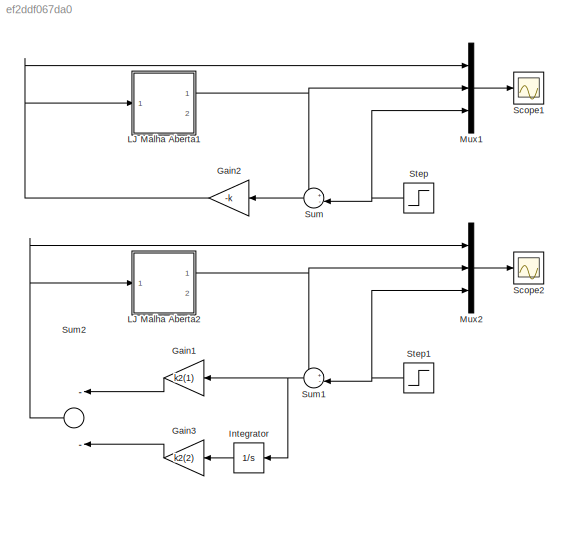
MODEL slx_ef2ddf067da0
KIND model
BLOCK [Gain] Gain1
  Gain = k2(1)
  OutDataTypeStr = Inherit: Inherit via internal rule
  ParamDataTypeStr = Inherit: Inherit via internal rule
  SaturateOnIntegerOverflow = off
BLOCK [Gain] Gain2
  Gain = -k
  OutDataTypeStr = Inherit: Inherit via internal rule
  ParamDataTypeStr = Inherit: Inherit via internal rule
  SaturateOnIntegerOverflow = off
BLOCK [Gain] Gain3
  Gain = k2(2)
  OutDataTypeStr = Inherit: Inherit via internal rule
  ParamDataTypeStr = Inherit: Inherit via internal rule
  SaturateOnIntegerOverflow = off
BLOCK [Integrator] Integrator
  Ports = [1, 1]
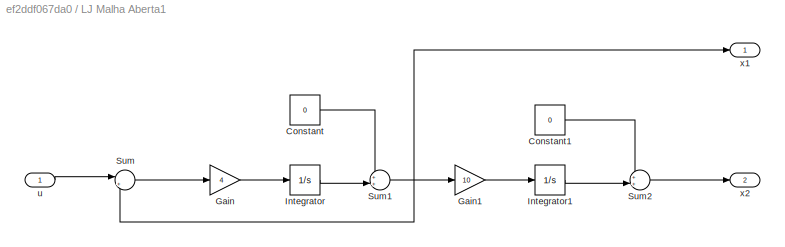
BLOCK [SubSystem] LJ Malha Aberta1
  Ports = [1, 2]
  RequestExecContextInheritance = off
BLOCK [Constant] LJ Malha Aberta1/Constant
  Value = 0
BLOCK [Constant] LJ Malha Aberta1/Constant1
  Value = 0
BLOCK [Gain] LJ Malha Aberta1/Gain
  Gain = 4
  OutDataTypeStr = Inherit: Inherit via internal rule
  ParamDataTypeStr = Inherit: Inherit via internal rule
  SaturateOnIntegerOverflow = off
BLOCK [Gain] LJ Malha Aberta1/Gain1
  Gain = 10
  OutDataTypeStr = Inherit: Inherit via internal rule
  ParamDataTypeStr = Inherit: Inherit via internal rule
  SaturateOnIntegerOverflow = off
BLOCK [Integrator] LJ Malha Aberta1/Integrator
  Ports = [1, 1]
BLOCK [Integrator] LJ Malha Aberta1/Integrator1
  Ports = [1, 1]
BLOCK [Sum] LJ Malha Aberta1/Sum
  IconShape = round
  InputSameDT = off
  Inputs = |+-
  OutDataTypeStr = Inherit: Inherit via internal rule
  Ports = [2, 1]
  SaturateOnIntegerOverflow = off
BLOCK [Sum] LJ Malha Aberta1/Sum1
  IconShape = round
  InputSameDT = off
  Inputs = ++|
  OutDataTypeStr = Inherit: Inherit via internal rule
  Ports = [2, 1]
  SaturateOnIntegerOverflow = off
BLOCK [Sum] LJ Malha Aberta1/Sum2
  IconShape = round
  InputSameDT = off
  Inputs = ++|
  OutDataTypeStr = Inherit: Inherit via internal rule
  Ports = [2, 1]
  SaturateOnIntegerOverflow = off
BLOCK [Inport] LJ Malha Aberta1/u
  IconDisplay = Port number
BLOCK [Outport] LJ Malha Aberta1/x1
  IconDisplay = Port number
BLOCK [Outport] LJ Malha Aberta1/x2 
  IconDisplay = Port number
  Port = 2
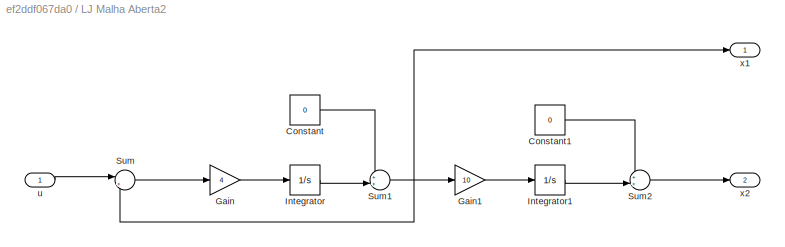
BLOCK [SubSystem] LJ Malha Aberta2
  Ports = [1, 2]
  RequestExecContextInheritance = off
BLOCK [Constant] LJ Malha Aberta2/Constant
  Value = 0
BLOCK [Constant] LJ Malha Aberta2/Constant1
  Value = 0
BLOCK [Gain] LJ Malha Aberta2/Gain
  Gain = 4
  OutDataTypeStr = Inherit: Inherit via internal rule
  ParamDataTypeStr = Inherit: Inherit via internal rule
  SaturateOnIntegerOverflow = off
BLOCK [Gain] LJ Malha Aberta2/Gain1
  Gain = 10
  OutDataTypeStr = Inherit: Inherit via internal rule
  ParamDataTypeStr = Inherit: Inherit via internal rule
  SaturateOnIntegerOverflow = off
BLOCK [Integrator] LJ Malha Aberta2/Integrator
  Ports = [1, 1]
BLOCK [Integrator] LJ Malha Aberta2/Integrator1
  Ports = [1, 1]
BLOCK [Sum] LJ Malha Aberta2/Sum
  IconShape = round
  InputSameDT = off
  Inputs = |+-
  OutDataTypeStr = Inherit: Inherit via internal rule
  Ports = [2, 1]
  SaturateOnIntegerOverflow = off
BLOCK [Sum] LJ Malha Aberta2/Sum1
  IconShape = round
  InputSameDT = off
  Inputs = ++|
  OutDataTypeStr = Inherit: Inherit via internal rule
  Ports = [2, 1]
  SaturateOnIntegerOverflow = off
BLOCK [Sum] LJ Malha Aberta2/Sum2
  IconShape = round
  InputSameDT = off
  Inputs = ++|
  OutDataTypeStr = Inherit: Inherit via internal rule
  Ports = [2, 1]
  SaturateOnIntegerOverflow = off
BLOCK [Inport] LJ Malha Aberta2/u
  IconDisplay = Port number
BLOCK [Outport] LJ Malha Aberta2/x1
  IconDisplay = Port number
BLOCK [Outport] LJ Malha Aberta2/x2 
  IconDisplay = Port number
  Port = 2
BLOCK [Mux] Mux1
  DisplayOption = bar
  Inputs = 3
  Ports = [3, 1]
BLOCK [Mux] Mux2
  DisplayOption = bar
  Inputs = 3
  Ports = [3, 1]
BLOCK [Scope] Scope1
  DataFormat = StructureWithTime
  Floating = off
  NumInputPorts = 1
  Ports = [1]
  SampleTime = 0
  SaveName = ControleV
  SaveToWorkspace = on
  ShowLegends = off
  ZoomMode = xonly
BLOCK [Scope] Scope2
  DataFormat = StructureWithTime
  Floating = off
  NumInputPorts = 1
  Ports = [1]
  SampleTime = 0
  ShowLegends = off
  ZoomMode = xonly
BLOCK [Step] Step
  After = 10
  SampleTime = 0
  Time = 0
BLOCK [Step] Step1
  After = 10
  SampleTime = 0
  Time = 0.5
BLOCK [Sum] Sum
  IconShape = round
  InputSameDT = off
  Inputs = +-|
  OutDataTypeStr = Inherit: Inherit via internal rule
  Ports = [2, 1]
  SaturateOnIntegerOverflow = off
BLOCK [Sum] Sum1
  IconShape = round
  InputSameDT = off
  Inputs = +-|
  OutDataTypeStr = Inherit: Inherit via internal rule
  Ports = [2, 1]
  SaturateOnIntegerOverflow = off
BLOCK [Sum] Sum2
  InputSameDT = off
  Inputs = --
  OutDataTypeStr = Inherit: Inherit via internal rule
  Ports = [2, 1]
  SaturateOnIntegerOverflow = off
LINE Gain1:1 -> Sum2:1
NET Gain2:1 -> LJ Malha Aberta1:1, Mux1:1
LINE Gain3:1 -> Sum2:2
LINE Integrator:1 -> Gain3:1
LINE LJ Malha Aberta1/Constant1:1 -> LJ Malha Aberta1/Sum2:1
LINE LJ Malha Aberta1/Constant:1 -> LJ Malha Aberta1/Sum1:1
LINE LJ Malha Aberta1/Gain1:1 -> LJ Malha Aberta1/Integrator1:1
LINE LJ Malha Aberta1/Gain:1 -> LJ Malha Aberta1/Integrator:1
LINE LJ Malha Aberta1/Integrator1:1 -> LJ Malha Aberta1/Sum2:2
LINE LJ Malha Aberta1/Integrator:1 -> LJ Malha Aberta1/Sum1:2
NET LJ Malha Aberta1/Sum1:1 -> LJ Malha Aberta1/Gain1:1, LJ Malha Aberta1/Sum:2, LJ Malha Aberta1/x1:1
LINE LJ Malha Aberta1/Sum2:1 -> LJ Malha Aberta1/x2 :1
LINE LJ Malha Aberta1/Sum:1 -> LJ Malha Aberta1/Gain:1
LINE LJ Malha Aberta1/u:1 -> LJ Malha Aberta1/Sum:1
NET LJ Malha Aberta1:1 -> Mux1:2, Sum:1
LINE LJ Malha Aberta2/Constant1:1 -> LJ Malha Aberta2/Sum2:1
LINE LJ Malha Aberta2/Constant:1 -> LJ Malha Aberta2/Sum1:1
LINE LJ Malha Aberta2/Gain1:1 -> LJ Malha Aberta2/Integrator1:1
LINE LJ Malha Aberta2/Gain:1 -> LJ Malha Aberta2/Integrator:1
LINE LJ Malha Aberta2/Integrator1:1 -> LJ Malha Aberta2/Sum2:2
LINE LJ Malha Aberta2/Integrator:1 -> LJ Malha Aberta2/Sum1:2
NET LJ Malha Aberta2/Sum1:1 -> LJ Malha Aberta2/Gain1:1, LJ Malha Aberta2/Sum:2, LJ Malha Aberta2/x1:1
LINE LJ Malha Aberta2/Sum2:1 -> LJ Malha Aberta2/x2 :1
LINE LJ Malha Aberta2/Sum:1 -> LJ Malha Aberta2/Gain:1
LINE LJ Malha Aberta2/u:1 -> LJ Malha Aberta2/Sum:1
NET LJ Malha Aberta2:1 -> Mux2:2, Sum1:1
LINE Mux1:1 -> Scope1:1
LINE Mux2:1 -> Scope2:1
NET Step1:1 -> Mux2:3, Sum1:2
NET Step:1 -> Mux1:3, Sum:2
NET Sum1:1 -> Gain1:1, Integrator:1
NET Sum2:1 -> LJ Malha Aberta2:1, Mux2:1
LINE Sum:1 -> Gain2:1
note: NET lines group one-source signal fan-out (src -> all destinations, sorted); 1:1 wires keep LINE
